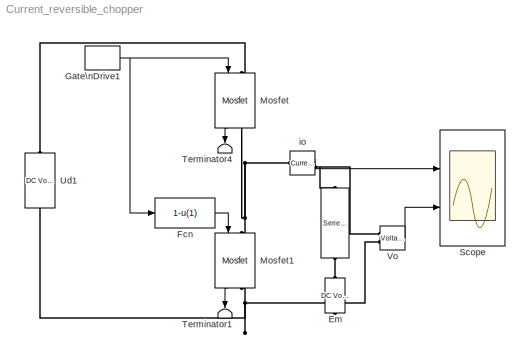
MODEL Current_reversible_chopper
KIND model
BLOCK [Reference]    REF=powerlib/Elements/Series RLC Branch
  Capacitance = inf
  Inductance = 0.001
  LConnTagsString = __new0
  LeftPortType = p1
  Measurements = None
  PhysicalDomain = powersysdomain
  Ports = [0, 0, 0, 0, 0, 1, 1]
  RConnTagsString = __new0
  Resistance = 1
  RightPortType = p1
  SourceBlock = powerlib/Elements/Series RLC Branch
  SourceType = Series RLC Branch
  SubClassName = unknown
BLOCK [Reference] Em  REF=powerlib/Electrical\nSources/DC Voltage Source
  Amplitude = 50
  Measurements = None
  Ports = [0, 0, 0, 0, 0, 1, 1]
  ShowPortLabels = on
  SourceBlock = powerlib/Electrical\nSources/DC Voltage Source
  SourceType = DC Voltage Source
BLOCK [Fcn] Fcn
  Expr = 1-u(1)
BLOCK [DiscretePulseGenerator] Gate\nDrive1
  Period = 0.001
  Ports = [0, 1]
  PulseType = Time based
  PulseWidth = 70
BLOCK [Reference] Mosfet  REF=powerlib/Power\nElectronics/Mosfet
  Cs = 1e-6
  IC = 0
  Lon = 1e-9
  Measurements = on
  Ports = [1, 1, 0, 0, 0, 1, 1]
  Rd = .001
  Ron = 0.001
  Rs = 1
  ShowPortLabels = on
  SourceBlock = powerlib/Power\nElectronics/Mosfet
  SourceType = Mosfet
BLOCK [Reference] Mosfet1  REF=powerlib/Power\nElectronics/Mosfet
  Cs = 1e-6
  IC = 0
  Lon = 1e-9
  Measurements = on
  Ports = [1, 1, 0, 0, 0, 1, 1]
  Rd = .001
  Ron = 0.001
  Rs = 1
  ShowPortLabels = on
  SourceBlock = powerlib/Power\nElectronics/Mosfet
  SourceType = Mosfet
BLOCK [Scope] Scope
  DataFormat = StructureWithTime
  NumInputPorts = 2
  Ports = [2]
  SampleTime = 2e-4
  TimeRange = 0.01
  YMax = 100~150
  YMin = -100~-50
  ZoomMode = xonly
BLOCK [Terminator] Terminator1
BLOCK [Terminator] Terminator4
BLOCK [Reference] Ud1  REF=powerlib/Electrical\nSources/DC Voltage Source
  Amplitude = 100
  Measurements = None
  Ports = [0, 0, 0, 0, 0, 1, 1]
  ShowPortLabels = on
  SourceBlock = powerlib/Electrical\nSources/DC Voltage Source
  SourceType = DC Voltage Source
BLOCK [Reference] Vo  REF=powerlib/Measurements/Voltage Measurement
  OutputType = Complex
  PSBequivalent = 0
  PhasorSimulation = off
  Ports = [0, 1, 0, 0, 0, 2]
  ShowPortLabels = on
  SourceBlock = powerlib/Measurements/Voltage Measurement
  SourceType = Voltage Measurement
BLOCK [Reference] io  REF=powerlib/Measurements/Current Measurement
  OutputType = Complex
  PSBequivalent = 0
  PhasorSimulation = off
  Ports = [0, 1, 0, 0, 0, 1, 1]
  ShowPortLabels = on
  SourceBlock = powerlib/Measurements/Current Measurement
  SourceType = Current Measurement
LINE Fcn:1 -> Mosfet1:1
NET Gate\nDrive1:1 -> Fcn:1, Mosfet:1
LINE Mosfet1:1 -> Terminator1:1
LINE Mosfet:1 -> Terminator4:1
LINE Vo:1 -> Scope:2
LINE io:1 -> Scope:1
PNET net1:  :LConn1 -- Vo:LConn1 -- io:RConn1
PLINE  :RConn1 -- Em:RConn1
PNET net2: Em:LConn1 -- Mosfet1:RConn1 -- Ud1:LConn1 -- Vo:LConn2
PNET net3: Mosfet1:LConn1 -- Mosfet:RConn1 -- io:LConn1
PLINE Mosfet:LConn1 -- Ud1:RConn1
note: NET lines group one-source signal fan-out (src -> all destinations, sorted); 1:1 wires keep LINE; PNET lines group multi-terminal physical nets as a canonical sorted terminal list (undirected conserving connections); 2-terminal nets keep the pairwise PLINE form
